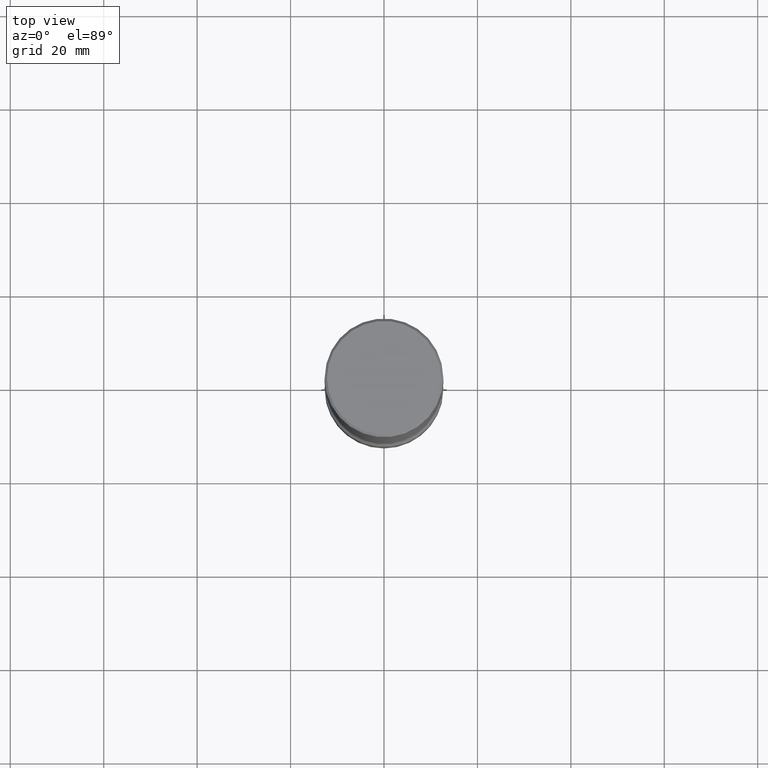
[diagram: clean part render]
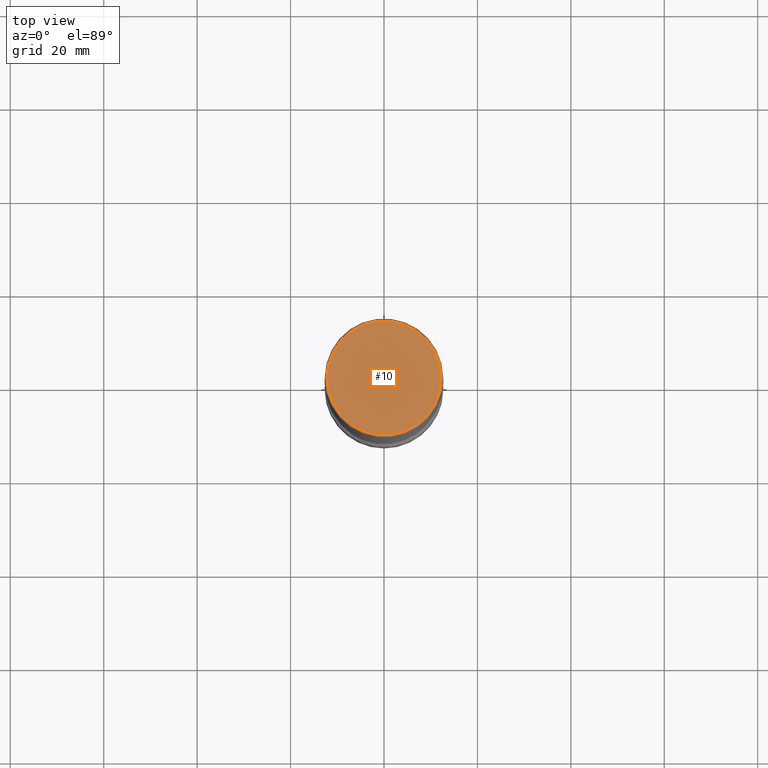
[diagram: same view with one face highlighted and labeled with its STEP entity id]
A machine part, top view. The second image highlights one B-rep face of the part: STEP entity #10.
In plain terms, the highlighted planar face has unit normal (-0, 0, 1).
Its self-contained STEP definition (entity closure, byte-faithful):
#6 = DIRECTION ( 'NONE',  ( -2.438088387897960049E-29, 3.491481338843145188E-15, 1.000000000000000000 ) ) ;
#10 = ADVANCED_FACE ( 'NONE', ( #485 ), #271, .T. ) ;
#11 = CARTESIAN_POINT ( 'NONE',  ( 0.000000000000000000, 0.000000000000000000, 0.000000000000000000 ) ) ;
#13 = AXIS2_PLACEMENT_3D ( 'NONE', #49, #6, #405 ) ;
#49 = CARTESIAN_POINT ( 'NONE',  ( 3.351822085289404392E-15, 0.4799999999999995381, -1.667374017664507456E-15 ) ) ;
#58 = CARTESIAN_POINT ( 'NONE',  ( 0.4799999999999995381, -3.396558832296479732E-15, 2.359727204893466567E-29 ) ) ;
#61 = VERTEX_POINT ( 'NONE', #72 ) ;
#72 = CARTESIAN_POINT ( 'NONE',  ( -0.4799999999999995381, 3.351822085289404787E-15, -2.340564852382046882E-29 ) ) ;
#100 = AXIS2_PLACEMENT_3D ( 'NONE', #11, #276, #539 ) ;
#147 = CIRCLE ( 'NONE', #453, 0.4799999999999995381 ) ;
#166 = DIRECTION ( 'NONE',  ( 2.445468806185136597E-29, -3.491481338843145583E-15, -1.000000000000000000 ) ) ;
#207 = DIRECTION ( 'NONE',  ( -1.000000000000000000, 6.982962677686266711E-15, -4.876176775795935793E-29 ) ) ;
#223 = ORIENTED_EDGE ( 'NONE', *, *, #495, .F. ) ;
#271 = PLANE ( 'NONE',  #13 ) ;
#276 = DIRECTION ( 'NONE',  ( 2.445468806185136597E-29, -3.491481338843145583E-15, -1.000000000000000000 ) ) ;
#282 = ORIENTED_EDGE ( 'NONE', *, *, #442, .F. ) ;
#362 = VERTEX_POINT ( 'NONE', #58 ) ;
#405 = DIRECTION ( 'NONE',  ( 1.000000000000000000, -6.982962677686265922E-15, 4.876176775795935793E-29 ) ) ;
#421 = CARTESIAN_POINT ( 'NONE',  ( 0.000000000000000000, 0.000000000000000000, 0.000000000000000000 ) ) ;
#442 = EDGE_CURVE ( 'NONE', #362, #61, #550, .T. ) ;
#453 = AXIS2_PLACEMENT_3D ( 'NONE', #421, #166, #207 ) ;
#468 = EDGE_LOOP ( 'NONE', ( #223, #282 ) ) ;
#485 = FACE_OUTER_BOUND ( 'NONE', #468, .T. ) ;
#495 = EDGE_CURVE ( 'NONE', #61, #362, #147, .T. ) ;
#539 = DIRECTION ( 'NONE',  ( -1.000000000000000000, 6.982962677686266711E-15, -4.876176775795935793E-29 ) ) ;
#550 = CIRCLE ( 'NONE', #100, 0.4799999999999995381 ) ;